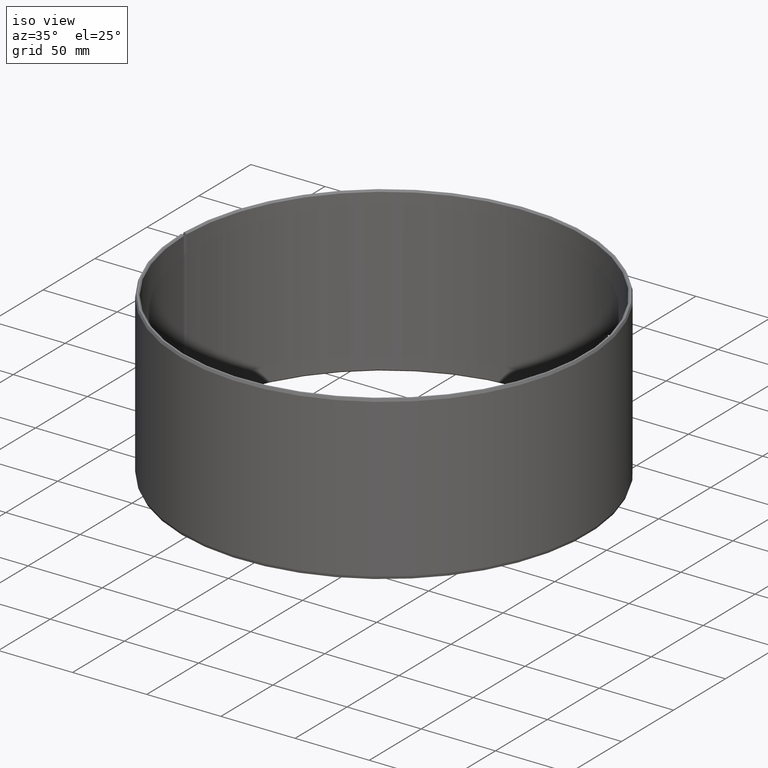
[diagram: clean part render]
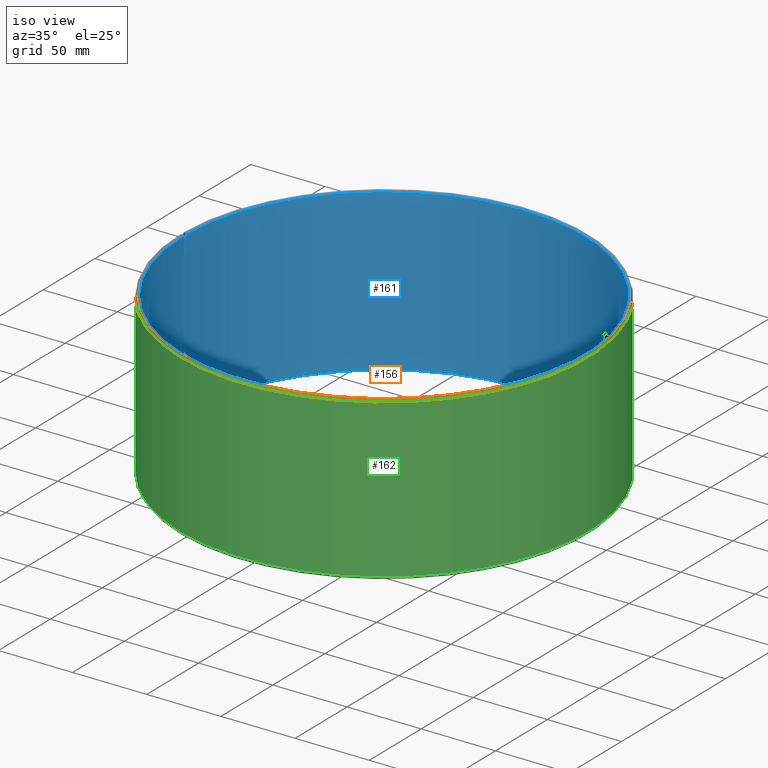
[diagram: same view with three faces highlighted in distinct colors, each labeled with its STEP entity id]
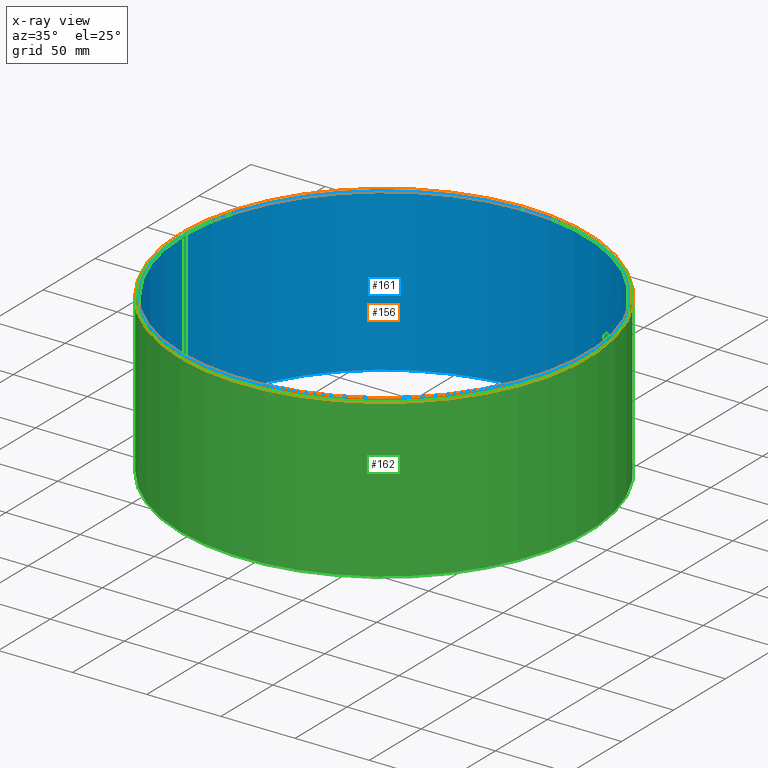
[diagram: x-ray of the same camera — body ghosted, the three highlighted faces saturated]
A machine part, iso view with three faces highlighted in distinct colors.
The next image is the same camera in x-ray (body ghosted, the three faces saturated) — at least one of them is partly hidden behind the body in this view.
Their STEP definitions:

[orange] entity #156 — the highlighted conical surface has half-angle 20 deg.
#156=ADVANCED_FACE('',(#172),#173,.T.);
#172=FACE_OUTER_BOUND('',#198,.T.);
#173=CONICAL_SURFACE('',#199,0.1375,0.349065850398889);
#198=EDGE_LOOP('',(#238,#239,#240,#241));
#199=AXIS2_PLACEMENT_3D('',#242,#243,#244);
#238=ORIENTED_EDGE('',*,*,#312,.T.);
#239=ORIENTED_EDGE('',*,*,#313,.F.);
#240=ORIENTED_EDGE('',*,*,#314,.F.);
#241=ORIENTED_EDGE('',*,*,#315,.T.);
#242=CARTESIAN_POINT('',(-1.38777878078145E-017,-6.93889390390723E-018,0.1082));
#243=DIRECTION('',(6.12323399573677E-017,-0.0,-1.0));
#244=DIRECTION('',(-1.0,0.0,-6.12323399573677E-017));
#312=EDGE_CURVE('',#346,#347,#348,.T.);
#313=EDGE_CURVE('',#349,#347,#350,.T.);
#314=EDGE_CURVE('',#351,#349,#352,.T.);
#315=EDGE_CURVE('',#351,#346,#353,.T.);
#346=VERTEX_POINT('',#396);
#347=VERTEX_POINT('',#397);
#348=CIRCLE('',#398,0.136844853578321);
#349=VERTEX_POINT('',#399);
#350=LINE('',#400,#401);
#351=VERTEX_POINT('',#402);
#352=CIRCLE('',#403,0.1375);
#353=LINE('',#404,#405);
#396=CARTESIAN_POINT('',(0.0023882720034994,0.136824011444298,0.11));
#397=CARTESIAN_POINT('',(-1.38777878078145E-017,0.136844853578321,0.11));
#398=AXIS2_PLACEMENT_3D('',#596,#597,#598);
#399=CARTESIAN_POINT('',(-1.38777878078145E-017,0.1375,0.1082));
#400=CARTESIAN_POINT('',(-1.38777878078145E-017,0.1375,0.1082));
#401=VECTOR('',#599,1.0);
#402=CARTESIAN_POINT('',(0.00239970588512648,0.137479058084004,0.1082));
#403=AXIS2_PLACEMENT_3D('',#600,#601,#602);
#404=CARTESIAN_POINT('',(0.00239970588512648,0.137479058084004,0.1082));
#405=VECTOR('',#603,1.0);
#596=CARTESIAN_POINT('',(-1.38777878078145E-017,-6.93889390390723E-018,0.11));
#597=DIRECTION('',(6.12323399573677E-017,0.0,-1.0));
#598=DIRECTION('',(-1.0,0.0,-6.12323399573677E-017));
#599=DIRECTION('',(0.0,-0.342020143325678,0.939692620785905));
#600=CARTESIAN_POINT('',(-1.38777878078145E-017,-6.93889390390723E-018,0.1082));
#601=DIRECTION('',(6.12323399573677E-017,0.0,-1.0));
#602=DIRECTION('',(-1.0,0.0,-6.12323399573677E-017));
#603=DIRECTION('',(-0.0059690745510577,-0.341968052001238,0.939692620785905));

[blue] entity #161 — the highlighted cylindrical surface (partial cylindrical patch) has radius 135 mm, axis along (-0, 0, -1).
#161=ADVANCED_FACE('',(#182,#183),#184,.F.);
#182=FACE_OUTER_BOUND('',#208,.T.);
#183=FACE_BOUND('',#209,.T.);
#184=CYLINDRICAL_SURFACE('',#210,0.135);
#208=EDGE_LOOP('',(#281,#282,#283,#284));
#209=EDGE_LOOP('',(#285));
#210=AXIS2_PLACEMENT_3D('',#286,#287,#288);
#281=ORIENTED_EDGE('',*,*,#304,.T.);
#282=ORIENTED_EDGE('',*,*,#322,.F.);
#283=ORIENTED_EDGE('',*,*,#319,.F.);
#284=ORIENTED_EDGE('',*,*,#325,.T.);
#285=ORIENTED_EDGE('',*,*,#326,.T.);
#286=CARTESIAN_POINT('',(-6.93889390390723E-018,-6.93889390390723E-018,0.0));
#287=DIRECTION('',(6.12323399573677E-017,0.0,-1.0));
#288=DIRECTION('',(-1.0,0.0,-6.12323399573677E-017));
#304=EDGE_CURVE('',#333,#331,#334,.T.);
#319=EDGE_CURVE('',#359,#360,#361,.T.);
#322=EDGE_CURVE('',#360,#331,#364,.T.);
#325=EDGE_CURVE('',#359,#333,#367,.T.);
#326=EDGE_CURVE('',#368,#368,#369,.T.);
#331=VERTEX_POINT('',#375);
#333=VERTEX_POINT('',#378);
#334=CIRCLE('',#379,0.135);
#359=VERTEX_POINT('',#413);
#360=VERTEX_POINT('',#414);
#361=CIRCLE('',#415,0.135);
#364=LINE('',#420,#421);
#367=LINE('',#426,#427);
#368=VERTEX_POINT('',#428);
#369=B_SPLINE_CURVE_WITH_KNOTS('',3,(#429,#430,#431,#432,#433,#434,#435,#436,#437,#438,#439,#440,#441,#442,#443,#444,#445,#446,#447,#448,#449,#450,#451,#452,#453,#454,#455,#456,#457,#458,#459,#460,#461,#462,#463,#464,#465,#466,#467,#468,#469,#470,#471,#472,#473,#474,#475,#476,#477,#478,#479,#480,#481,#482,#483,#484,#485,#486,#487,#488,#489,#490,#491,#492,#493,#494,#495,#496,#497,#498,#499,#500,#501,#502),.UNSPECIFIED.,.T.,.F.,(2,2,2,2,2,2,2,2,2,2,2,2,2,2,2,2,2,2,2,2,2,2,2,2,2,2,2,2,2,2,2,2,2,2,2,2,2,2,2),(-0.000976990436424124,0.0,0.000976990436424092,0.00146548565463614,0.00195398087284818,0.00293097130927231,0.00390796174569643,0.00488495218212056,0.00586194261854468,0.00683893305496881,0.00781592349139293,0.00879291392781706,0.00976990436424118,0.0107468948006653,0.0117238852370894,0.0127008756735136,0.0131893708917256,0.0136778661099377,0.0146548565463619,0.0156318469827861,0.0166088374192102,0.0175858278556344,0.0185628182920586,0.0195398087284828,0.0205167991649069,0.0214937896013311,0.0224707800377553,0.0234477704741795,0.0244247609106036,0.0249132561288157,0.0254017513470278,0.0263787417834519,0.0273557322198761,0.0283327226563002,0.0288212178745123,0.0293097130927244,0.0302867035291485,0.0312636939655726,0.0322406844019967),.UNSPECIFIED.);
#375=CARTESIAN_POINT('',(-6.93889390390723E-018,0.135,0.0008));
#378=CARTESIAN_POINT('',(0.00235607486903328,0.134979438846113,0.0008));
#379=AXIS2_PLACEMENT_3D('',#582,#583,#584);
#413=CARTESIAN_POINT('',(0.00235607486903327,0.134979438846113,0.1092));
#414=CARTESIAN_POINT('',(-1.38777878078145E-017,0.135,0.1092));
#415=AXIS2_PLACEMENT_3D('',#609,#610,#611);
#420=CARTESIAN_POINT('',(-1.38777878078145E-017,0.135,0.1092));
#421=VECTOR('',#614,1.0);
#426=CARTESIAN_POINT('',(0.00235607486903327,0.134979438846113,0.1092));
#427=VECTOR('',#617,1.0);
#428=CARTESIAN_POINT('',(0.113063000641269,-0.0737682715399536,0.055));
#429=CARTESIAN_POINT('',(0.113063000641269,-0.0737682715399536,0.0553303545461615));
#430=CARTESIAN_POINT('',(0.113063000641269,-0.0737682715399536,0.0546696454538385));
#431=CARTESIAN_POINT('',(0.113080736702111,-0.0737411081116393,0.0543448170075434));
#432=CARTESIAN_POINT('',(0.113132768661331,-0.0736612358345816,0.0538655231922452));
#433=CARTESIAN_POINT('',(0.113154380540976,-0.0736280410736472,0.0537070932399469));
#434=CARTESIAN_POINT('',(0.11320629891649,-0.0735481893290715,0.0533929632109575));
#435=CARTESIAN_POINT('',(0.113236750379053,-0.0735013081859224,0.0532368427834821));
#436=CARTESIAN_POINT('',(0.113339220961965,-0.0733432802479869,0.0527827189918982));
#437=CARTESIAN_POINT('',(0.11342268382361,-0.0732142591200348,0.0524955432431412));
#438=CARTESIAN_POINT('',(0.113619144386343,-0.0729090047467504,0.0519520504850504));
#439=CARTESIAN_POINT('',(0.113733164820301,-0.0727311518753873,0.0516947449430828));
#440=CARTESIAN_POINT('',(0.113981103529176,-0.0723419744784022,0.0512335412139857));
#441=CARTESIAN_POINT('',(0.114115888926174,-0.0721293186133408,0.0510265770063521));
#442=CARTESIAN_POINT('',(0.114407027310107,-0.0716666366665831,0.050661056970457));
#443=CARTESIAN_POINT('',(0.11456131252159,-0.0714198584541684,0.0505057423184589));
#444=CARTESIAN_POINT('',(0.114878489750958,-0.0709085544967733,0.0502563710936851));
#445=CARTESIAN_POINT('',(0.115043719373169,-0.0706402631668614,0.0501603892607135));
#446=CARTESIAN_POINT('',(0.115380135182199,-0.070089432533253,0.0500319433097287));
#447=CARTESIAN_POINT('',(0.115548248660049,-0.0698119515460889,0.0500001745603862));
#448=CARTESIAN_POINT('',(0.115884176798651,-0.0692528982409912,0.0499998268606109));
#449=CARTESIAN_POINT('',(0.116053735690115,-0.0689683496267517,0.0500322766487147));
#450=CARTESIAN_POINT('',(0.116380051904629,-0.0684162724543281,0.0501598191555205));
#451=CARTESIAN_POINT('',(0.116537676231239,-0.068147352544279,0.0502541894470105));
#452=CARTESIAN_POINT('',(0.116842127232406,-0.0676240263809954,0.0505044759951668));
#453=CARTESIAN_POINT('',(0.116988494063711,-0.067370362127743,0.0506610114988582));
#454=CARTESIAN_POINT('',(0.117258021456481,-0.0669001482855589,0.0510228769661332));
#455=CARTESIAN_POINT('',(0.117382948723498,-0.0666805660925973,0.051229454705148));
#456=CARTESIAN_POINT('',(0.117612959847734,-0.0662740237295719,0.0516959249443295));
#457=CARTESIAN_POINT('',(0.117714560929458,-0.0660932294455826,0.0519488980124218));
#458=CARTESIAN_POINT('',(0.117847310129232,-0.0658560529005886,0.0523549416476973));
#459=CARTESIAN_POINT('',(0.11788830770248,-0.0657826185879065,0.0524948520880535));
#460=CARTESIAN_POINT('',(0.117963726703762,-0.0656472785680931,0.0527839939942256));
#461=CARTESIAN_POINT('',(0.117998241758303,-0.0655852032757491,0.0529338740515098));
#462=CARTESIAN_POINT('',(0.118089726891453,-0.0654204263956665,0.0533882683762574));
#463=CARTESIAN_POINT('',(0.118135535173523,-0.0653375805432342,0.0536999326361024));
#464=CARTESIAN_POINT('',(0.118197476879333,-0.0652254594567017,0.0543405279066722));
#465=CARTESIAN_POINT('',(0.118213325191101,-0.0651967004324338,0.0546719112253129));
#466=CARTESIAN_POINT('',(0.118213437284358,-0.0651964971868166,0.0553245346919778));
#467=CARTESIAN_POINT('',(0.118198213774719,-0.0652241238971328,0.0556488580705027));
#468=CARTESIAN_POINT('',(0.118136457198541,-0.0653359132350659,0.0562934459981));
#469=CARTESIAN_POINT('',(0.118090006616584,-0.0654199192803151,0.0566095652092508));
#470=CARTESIAN_POINT('',(0.117969138155824,-0.065637625978702,0.057211446017938));
#471=CARTESIAN_POINT('',(0.117893947790534,-0.0657727185847797,0.0575016979157635));
#472=CARTESIAN_POINT('',(0.117715340431184,-0.0660918456607197,0.0580494137970533));
#473=CARTESIAN_POINT('',(0.117613942923048,-0.0662722679107148,0.0583013796851146));
#474=CARTESIAN_POINT('',(0.117387092448068,-0.0666732599362328,0.0587628276754758));
#475=CARTESIAN_POINT('',(0.117260034996644,-0.0668966225778658,0.0589741107095188));
#476=CARTESIAN_POINT('',(0.116989633373957,-0.0673683872655913,0.0593377642514437));
#477=CARTESIAN_POINT('',(0.116846166844922,-0.0676170443737561,0.0594915309526548));
#478=CARTESIAN_POINT('',(0.116542154179491,-0.0681396925102951,0.0597427828287934));
#479=CARTESIAN_POINT('',(0.116381372953233,-0.0684140202452937,0.0598394111197509));
#480=CARTESIAN_POINT('',(0.116056154592302,-0.0689642742139057,0.0599670283985036));
#481=CARTESIAN_POINT('',(0.115890026614762,-0.0692431258703335,0.0599996635982991));
#482=CARTESIAN_POINT('',(0.115550358331226,-0.0698084768390669,0.0600003312775733));
#483=CARTESIAN_POINT('',(0.115381313304983,-0.0700874784290288,0.0599681364473339));
#484=CARTESIAN_POINT('',(0.11513151968827,-0.0704965154982856,0.0598733138326071));
#485=CARTESIAN_POINT('',(0.115048746633732,-0.0706315122401383,0.0598338945296235));
#486=CARTESIAN_POINT('',(0.114884237907037,-0.0708987764622269,0.0597391265674652));
#487=CARTESIAN_POINT('',(0.114802119067929,-0.0710316580973156,0.0596834189210578));
#488=CARTESIAN_POINT('',(0.114562324702415,-0.0714182451264543,0.0594953780486692));
#489=CARTESIAN_POINT('',(0.114409971673112,-0.0716619301143081,0.0593419727150668));
#490=CARTESIAN_POINT('',(0.114120544193115,-0.0721219469996314,0.0589799172397929));
#491=CARTESIAN_POINT('',(0.113982611083794,-0.0723396001441669,0.0587689423739349));
#492=CARTESIAN_POINT('',(0.113734341360279,-0.0727293130301727,0.0583077608437804));
#493=CARTESIAN_POINT('',(0.113622541351566,-0.0729037141119077,0.0580562982656114));
#494=CARTESIAN_POINT('',(0.113474112076386,-0.0731343575011127,0.0576472323325525));
#495=CARTESIAN_POINT('',(0.113427808902177,-0.0732061346910963,0.0575051238817577));
#496=CARTESIAN_POINT('',(0.113343805366139,-0.0733361287080409,0.0572163042920493));
#497=CARTESIAN_POINT('',(0.113305820612132,-0.0733947881224736,0.0570688895765143));
#498=CARTESIAN_POINT('',(0.113203785989854,-0.0735521479638053,0.0566177918368697));
#499=CARTESIAN_POINT('',(0.11315141749187,-0.0736326076637771,0.0563041750732253));
#500=CARTESIAN_POINT('',(0.113080739229187,-0.0737411052749266,0.0556572538702337));
#501=CARTESIAN_POINT('',(0.113063000641269,-0.0737682715399536,0.0553303545461615));
#502=CARTESIAN_POINT('',(0.113063000641269,-0.0737682715399536,0.0546696454538385));
#582=CARTESIAN_POINT('',(-6.93889390390723E-018,-6.93889390390723E-018,0.0008));
#583=DIRECTION('',(6.12323399573677E-017,0.0,-1.0));
#584=DIRECTION('',(-1.0,0.0,-6.12323399573677E-017));
#609=CARTESIAN_POINT('',(-1.38777878078145E-017,-6.93889390390723E-018,0.1092));
#610=DIRECTION('',(6.12323399573677E-017,0.0,-1.0));
#611=DIRECTION('',(-1.0,0.0,-6.12323399573677E-017));
#614=DIRECTION('',(6.4011936382908E-017,2.56047745531632E-016,-1.0));
#617=DIRECTION('',(6.84801623592773E-017,2.55960237573243E-016,-1.0));

[green] entity #162 — the highlighted cylindrical surface (partial cylindrical patch) has radius 137.5 mm, axis along (-0, 0, -1).
#162=ADVANCED_FACE('',(#185,#186),#187,.T.);
#185=FACE_OUTER_BOUND('',#211,.T.);
#186=FACE_BOUND('',#212,.T.);
#187=CYLINDRICAL_SURFACE('',#213,0.1375);
#211=EDGE_LOOP('',(#289,#290,#291,#292));
#212=EDGE_LOOP('',(#293));
#213=AXIS2_PLACEMENT_3D('',#294,#295,#296);
#289=ORIENTED_EDGE('',*,*,#314,.T.);
#290=ORIENTED_EDGE('',*,*,#323,.F.);
#291=ORIENTED_EDGE('',*,*,#309,.F.);
#292=ORIENTED_EDGE('',*,*,#324,.T.);
#293=ORIENTED_EDGE('',*,*,#327,.T.);
#294=CARTESIAN_POINT('',(-6.93889390390723E-018,-6.93889390390723E-018,0.0));
#295=DIRECTION('',(6.12323399573677E-017,0.0,-1.0));
#296=DIRECTION('',(-1.0,0.0,-6.12323399573677E-017));
#309=EDGE_CURVE('',#341,#342,#343,.T.);
#314=EDGE_CURVE('',#351,#349,#352,.T.);
#323=EDGE_CURVE('',#342,#349,#365,.T.);
#324=EDGE_CURVE('',#341,#351,#366,.T.);
#327=EDGE_CURVE('',#370,#370,#371,.T.);
#341=VERTEX_POINT('',#389);
#342=VERTEX_POINT('',#390);
#343=CIRCLE('',#391,0.1375);
#349=VERTEX_POINT('',#399);
#351=VERTEX_POINT('',#402);
#352=CIRCLE('',#403,0.1375);
#365=LINE('',#422,#423);
#366=LINE('',#424,#425);
#370=VERTEX_POINT('',#503);
#371=B_SPLINE_CURVE_WITH_KNOTS('',3,(#504,#505,#506,#507,#508,#509,#510,#511,#512,#513,#514,#515,#516,#517,#518,#519,#520,#521,#522,#523,#524,#525,#526,#527,#528,#529,#530,#531,#532,#533,#534,#535,#536,#537,#538,#539,#540,#541,#542,#543,#544,#545,#546,#547,#548,#549,#550,#551,#552,#553,#554,#555,#556,#557,#558,#559,#560,#561,#562,#563,#564,#565,#566,#567,#568,#569,#570,#571,#572,#573,#574,#575,#576,#577),.UNSPECIFIED.,.T.,.F.,(2,2,2,2,2,2,2,2,2,2,2,2,2,2,2,2,2,2,2,2,2,2,2,2,2,2,2,2,2,2,2,2,2,2,2,2,2,2,2),(-0.000976987452369909,0.0,0.000976987452369859,0.0014654811785548,0.00195397490473973,0.00293096235710959,0.00390794980947944,0.00488493726184929,0.00586192471421915,0.006838912166589,0.00781589961895886,0.00879288707132871,0.00976987452369857,0.0107468619760684,0.0117238494284383,0.0127008368808081,0.013189330606993,0.013677824333178,0.0146548117855478,0.0156317992379176,0.0166087866902875,0.0175857741426573,0.0185627615950271,0.019539749047397,0.0205167364997668,0.0214937239521366,0.0224707114045065,0.0234476988568763,0.0244246863092461,0.0249131800354311,0.025401673761616,0.0263786612139859,0.0273556486663558,0.0283326361187257,0.0288211298449107,0.0293096235710956,0.0302866110234655,0.0312635984758354,0.0322405859282053),.UNSPECIFIED.);
#389=CARTESIAN_POINT('',(0.00239970588512649,0.137479058084004,0.0018));
#390=CARTESIAN_POINT('',(-6.93889390390723E-018,0.1375,0.0018));
#391=AXIS2_PLACEMENT_3D('',#591,#592,#593);
#399=CARTESIAN_POINT('',(-1.38777878078145E-017,0.1375,0.1082));
#402=CARTESIAN_POINT('',(0.00239970588512648,0.137479058084004,0.1082));
#403=AXIS2_PLACEMENT_3D('',#600,#601,#602);
#422=CARTESIAN_POINT('',(-6.93889390390723E-018,0.1375,0.0018));
#423=VECTOR('',#615,1.0);
#424=CARTESIAN_POINT('',(0.00239970588512649,0.137479058084004,0.0018));
#425=VECTOR('',#616,1.0);
#503=CARTESIAN_POINT('',(0.115207363395044,-0.0750567346715959,0.055));
#504=CARTESIAN_POINT('',(0.115207363395044,-0.0750567346715959,0.0546696465422912));
#505=CARTESIAN_POINT('',(0.115207363395044,-0.0750567346715959,0.0553303534577088));
#506=CARTESIAN_POINT('',(0.115225080417777,-0.0750295600487515,0.0556551810375258));
#507=CARTESIAN_POINT('',(0.115277058082488,-0.0749496556993076,0.0561344738256432));
#508=CARTESIAN_POINT('',(0.115298647571448,-0.0749164477002707,0.0562929034810392));
#509=CARTESIAN_POINT('',(0.115350513045276,-0.0748365646460616,0.0566070329972167));
#510=CARTESIAN_POINT('',(0.115380933895812,-0.07478966529276,0.0567631534200489));
#511=CARTESIAN_POINT('',(0.115483303796366,-0.0746315771598519,0.057217277607537));
#512=CARTESIAN_POINT('',(0.115566687203495,-0.0745025083600199,0.0575044537677864));
#513=CARTESIAN_POINT('',(0.115762973358955,-0.0741971491515621,0.0580479473127682));
#514=CARTESIAN_POINT('',(0.115876898495551,-0.0740192382241298,0.0583052539969909));
#515=CARTESIAN_POINT('',(0.116124649645468,-0.0736299461968163,0.0587664594365581));
#516=CARTESIAN_POINT('',(0.116259341737594,-0.0734172334451861,0.0589734240285649));
#517=CARTESIAN_POINT('',(0.116550304842522,-0.0729544457118191,0.0593389440416824));
#518=CARTESIAN_POINT('',(0.116704510615856,-0.0727076179618814,0.0594942593102088));
#519=CARTESIAN_POINT('',(0.117021555085,-0.0721962336501415,0.0597436302037121));
#520=CARTESIAN_POINT('',(0.117186730321012,-0.0719279110208639,0.0598396114186439));
#521=CARTESIAN_POINT('',(0.117523073165655,-0.0713770370697396,0.0599680569555268));
#522=CARTESIAN_POINT('',(0.117691167779342,-0.0710995455195905,0.0599998254653583));
#523=CARTESIAN_POINT('',(0.118027094577784,-0.0705404939866773,0.0600001731140525));
#524=CARTESIAN_POINT('',(0.118196671686247,-0.0702559578949866,0.0599677235986805));
#525=CARTESIAN_POINT('',(0.118523059761194,-0.0697039247266114,0.0598401815626841));
#526=CARTESIAN_POINT('',(0.11868073674922,-0.0694350370043796,0.0597458115998876));
#527=CARTESIAN_POINT('',(0.118985320694202,-0.0689117921580554,0.0594955261536151));
#528=CARTESIAN_POINT('',(0.119131769145321,-0.0686581751586451,0.0593389902632159));
#529=CARTESIAN_POINT('',(0.119401471111107,-0.0681880644417534,0.0589771241960253));
#530=CARTESIAN_POINT('',(0.119526492216595,-0.067968538327695,0.0587705462817608));
#531=CARTESIAN_POINT('',(0.119756693818235,-0.0675621109034695,0.0583040768246069));
#532=CARTESIAN_POINT('',(0.119858390330217,-0.0673813705689403,0.0580511003303634));
#533=CARTESIAN_POINT('',(0.119991270162751,-0.0671442722263372,0.0576450558552289));
#534=CARTESIAN_POINT('',(0.120032309492047,-0.0670708631148981,0.0575051453503794));
#535=CARTESIAN_POINT('',(0.120107807196775,-0.0669355708973511,0.0572160038962855));
#536=CARTESIAN_POINT('',(0.120142359482635,-0.0668735179616366,0.0570661236904307));
#537=CARTESIAN_POINT('',(0.120233945391742,-0.0667088012335353,0.0566117277611742));
#538=CARTESIAN_POINT('',(0.120279806584152,-0.066625987646027,0.0563000634145872));
#539=CARTESIAN_POINT('',(0.120341820482934,-0.0665139109102963,0.0556594703984127));
#540=CARTESIAN_POINT('',(0.120357687888728,-0.0664851635035446,0.0553280879668186));
#541=CARTESIAN_POINT('',(0.120357800094034,-0.0664849603785546,0.0546754654208342));
#542=CARTESIAN_POINT('',(0.12034255820305,-0.0665125759729466,0.0543511432388724));
#543=CARTESIAN_POINT('',(0.120280729803187,-0.0666243207501899,0.0537065591612942));
#544=CARTESIAN_POINT('',(0.120234225283858,-0.0667082946193708,0.0533904378829428));
#545=CARTESIAN_POINT('',(0.120113224075906,-0.0669259210076738,0.0527885570694951));
#546=CARTESIAN_POINT('',(0.120037954804965,-0.0670609636167749,0.0524983082087595));
#547=CARTESIAN_POINT('',(0.119859170520588,-0.0673799872149415,0.0519505876180536));
#548=CARTESIAN_POINT('',(0.119757678776664,-0.0675603540305472,0.0516986206127977));
#549=CARTESIAN_POINT('',(0.119530639766663,-0.0679612332118813,0.0512371722201065));
#550=CARTESIAN_POINT('',(0.119403486843526,-0.0681845381973177,0.0510258892431914));
#551=CARTESIAN_POINT('',(0.119132908870013,-0.0686562010581915,0.0506622336358501));
#552=CARTESIAN_POINT('',(0.118989362606184,-0.0689048110182035,0.050508467140733));
#553=CARTESIAN_POINT('',(0.118685217045823,-0.0694273768024265,0.0502572166112064));
#554=CARTESIAN_POINT('',(0.118524381067941,-0.0697016730706318,0.0501605880478562));
#555=CARTESIAN_POINT('',(0.118199090492969,-0.0702518835549527,0.0500329712029762));
#556=CARTESIAN_POINT('',(0.118032944252468,-0.0705307225122199,0.0500003365033518));
#557=CARTESIAN_POINT('',(0.11769327881221,-0.0710960678900979,0.0499996686239454));
#558=CARTESIAN_POINT('',(0.117524250609257,-0.0713750839610765,0.0500318634946197));
#559=CARTESIAN_POINT('',(0.117274511445635,-0.0717841520679678,0.0501266856307027));
#560=CARTESIAN_POINT('',(0.117191760942462,-0.0719191614947739,0.0501661046732884));
#561=CARTESIAN_POINT('',(0.117027305644188,-0.0721864554924845,0.0502608717378357));
#562=CARTESIAN_POINT('',(0.116945217376317,-0.0723193551372025,0.0503165790069258));
#563=CARTESIAN_POINT('',(0.116705521902019,-0.0727060048152613,0.0505046205038352));
#564=CARTESIAN_POINT('',(0.116553247840563,-0.072949737918612,0.0506580261316639));
#565=CARTESIAN_POINT('',(0.116263994881002,-0.0734098585946612,0.0510200805137696));
#566=CARTESIAN_POINT('',(0.116126156733936,-0.0736275702444995,0.051231055884721));
#567=CARTESIAN_POINT('',(0.115878073901982,-0.0740173990806897,0.0516922404889823));
#568=CARTESIAN_POINT('',(0.115766367611403,-0.0741918564471653,0.0519437036463682));
#569=CARTESIAN_POINT('',(0.11561807072995,-0.0744225777498884,0.0523527676142935));
#570=CARTESIAN_POINT('',(0.115571809703488,-0.0744943809321976,0.0524948769147097));
#571=CARTESIAN_POINT('',(0.115487884433202,-0.0746244231988016,0.052783698764791));
#572=CARTESIAN_POINT('',(0.115449936214086,-0.074683104756854,0.0529311141945929));
#573=CARTESIAN_POINT('',(0.115348001761759,-0.0748405245933527,0.0533822126407818));
#574=CARTESIAN_POINT('',(0.115295688012724,-0.0749210151912278,0.0536958240897648));
#575=CARTESIAN_POINT('',(0.115225082933942,-0.0750295572056615,0.054342747223186));
#576=CARTESIAN_POINT('',(0.115207363395044,-0.0750567346715959,0.0546696465422912));
#577=CARTESIAN_POINT('',(0.115207363395044,-0.0750567346715959,0.0553303534577088));
#591=CARTESIAN_POINT('',(-6.93889390390723E-018,-6.93889390390723E-018,0.0018));
#592=DIRECTION('',(6.12323399573677E-017,0.0,-1.0));
#593=DIRECTION('',(-1.0,0.0,-6.12323399573677E-017));
#600=CARTESIAN_POINT('',(-1.38777878078145E-017,-6.93889390390723E-018,0.1082));
#601=DIRECTION('',(6.12323399573677E-017,0.0,-1.0));
#602=DIRECTION('',(-1.0,0.0,-6.12323399573677E-017));
#615=DIRECTION('',(-6.52151682698048E-017,0.0,1.0));
#616=DIRECTION('',(-6.52145616657615E-017,6.95099384785729E-020,1.0));